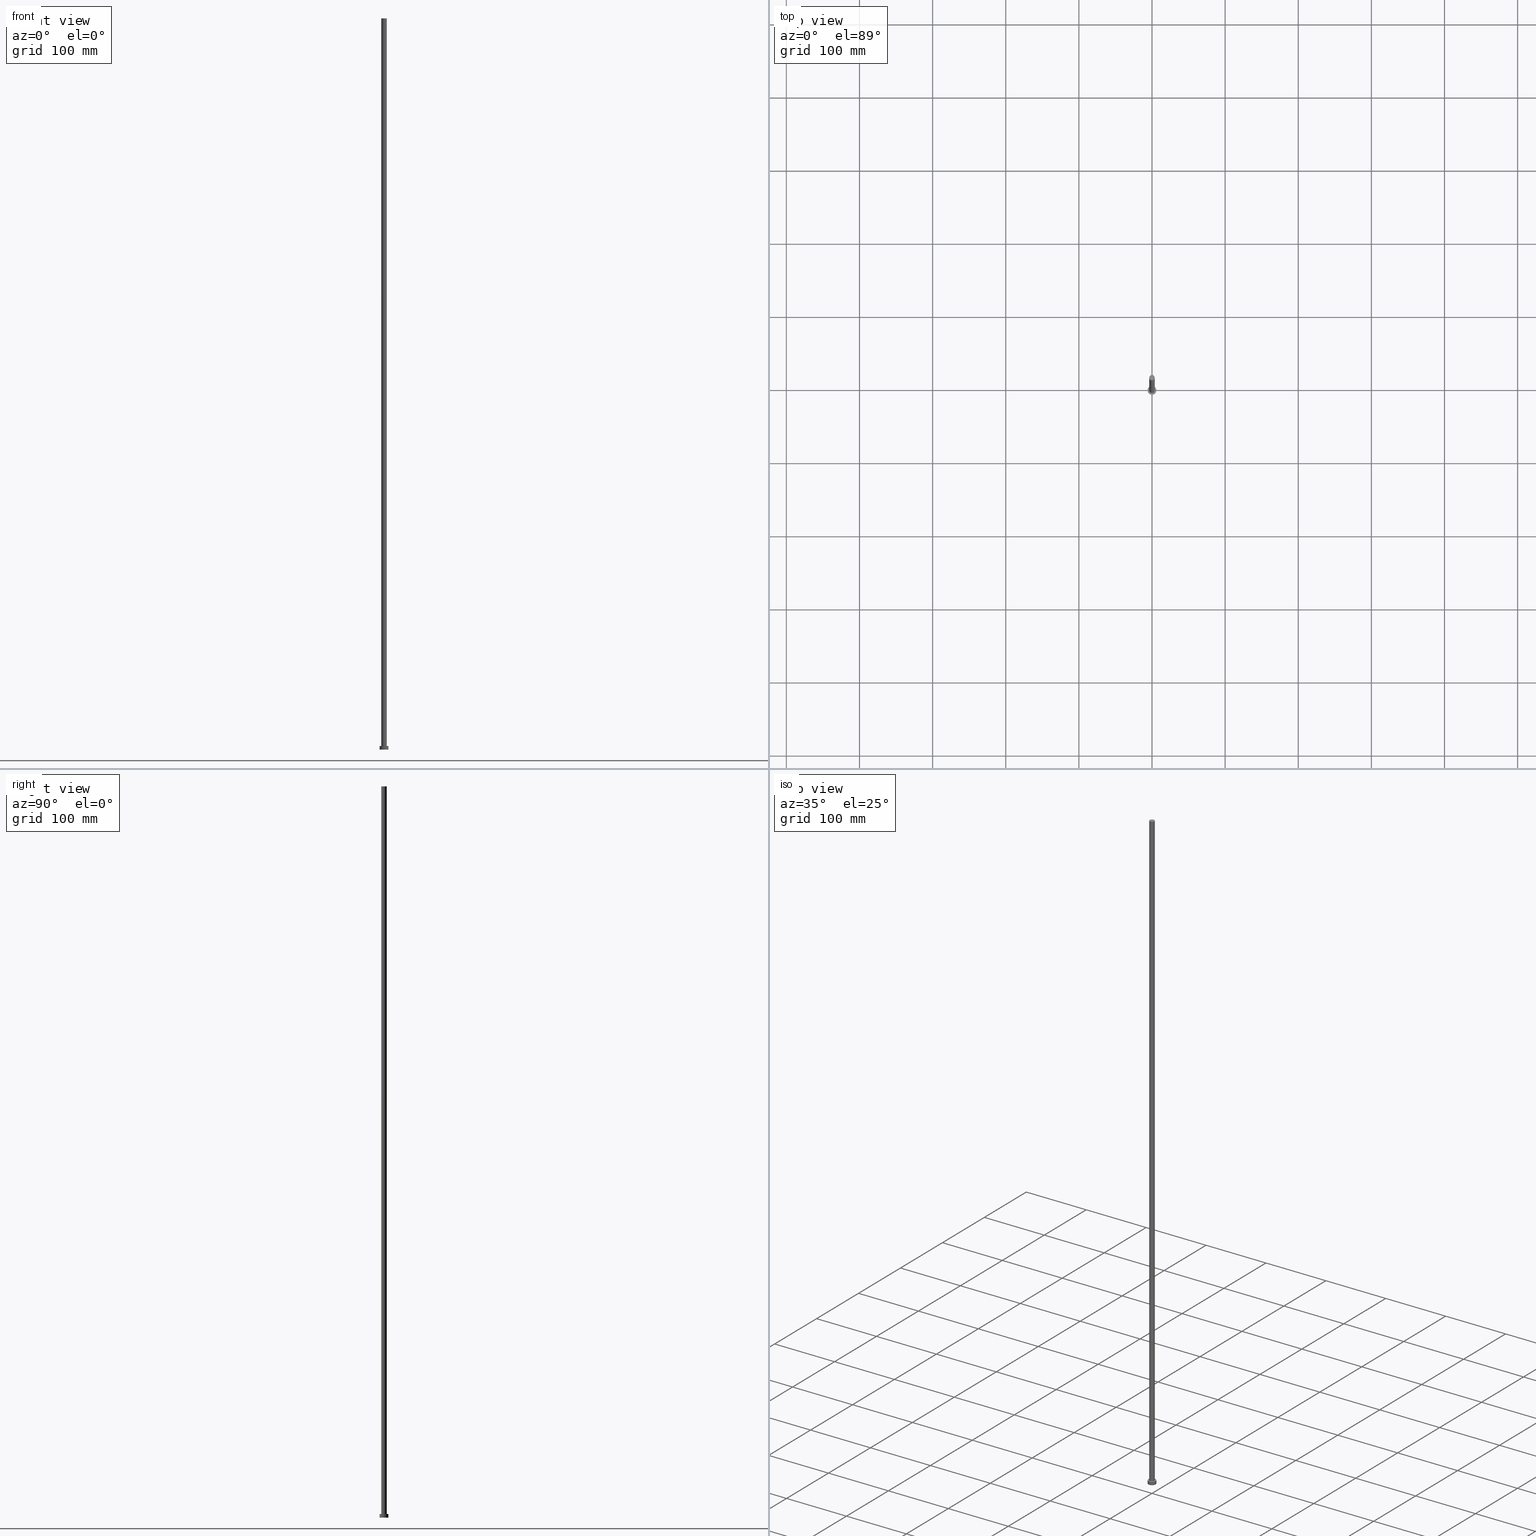
[diagram: canonical four-view strip — front | top / right | iso, engineering-drawing reading convention]
A machine part, canonical four-view strip (front | top / right | iso — engineering-drawing reading convention). The complete STEP part file that produces these views, byte-faithful:
ISO-10303-21;
HEADER;
FILE_DESCRIPTION (( 'STEP AP203' ),
    '1' );
FILE_NAME ('e66f.STEP',
    '2023-02-13T14:45:27',
    ( '' ),
    ( '' ),
    'SwSTEP 2.0',
    'SolidWorks 2019',
    '' );
FILE_SCHEMA (( 'CONFIG_CONTROL_DESIGN' ));
ENDSEC;

DATA;
#1 = COORDINATED_UNIVERSAL_TIME_OFFSET ( 1, 0, .AHEAD. ) ;
#2 = DIRECTION ( 'NONE',  ( 1.000000000000000000, 0.000000000000000000, 0.000000000000000000 ) ) ;
#3 = APPLICATION_CONTEXT ( 'configuration controlled 3d designs of mechanical parts and assemblies' ) ;
#4 = DATE_TIME_ROLE ( 'creation_date' ) ;
#5 = CC_DESIGN_PERSON_AND_ORGANIZATION_ASSIGNMENT ( #217, #76, ( #84 ) ) ;
#6 = CARTESIAN_POINT ( 'NONE',  ( 0.000000000000000000, 0.000000000000000000, 5.000000000000000000 ) ) ;
#7 = UNCERTAINTY_MEASURE_WITH_UNIT (LENGTH_MEASURE( 1.000000000000000082E-05 ), #219, 'distance_accuracy_value', 'NONE');
#8 = AXIS2_PLACEMENT_3D ( 'NONE', #247, #18, #154 ) ;
#9 = EDGE_CURVE ( 'NONE', #88, #133, #183, .T. ) ;
#10 = ADVANCED_BREP_SHAPE_REPRESENTATION ( 'e66f', ( #128, #90 ), #184 ) ;
#11 = FACE_BOUND ( 'NONE', #153, .T. ) ;
#12 = VECTOR ( 'NONE', #29, 1000.000000000000000 ) ;
#13 = EDGE_LOOP ( 'NONE', ( #17, #155 ) ) ;
#14 = VERTEX_POINT ( 'NONE', #181 ) ;
#15 = DESIGN_CONTEXT ( 'detailed design', #3, 'design' ) ;
#16 = EDGE_LOOP ( 'NONE', ( #57, #170, #182, #67 ) ) ;
#17 = ORIENTED_EDGE ( 'NONE', *, *, #99, .T. ) ;
#18 = DIRECTION ( 'NONE',  ( 0.000000000000000000, 0.000000000000000000, 1.000000000000000000 ) ) ;
#19 = VECTOR ( 'NONE', #22, 1000.000000000000000 ) ;
#20 = VERTEX_POINT ( 'NONE', #246 ) ;
#21 = EDGE_CURVE ( 'NONE', #20, #211, #63, .T. ) ;
#22 = DIRECTION ( 'NONE',  ( -0.000000000000000000, -0.000000000000000000, -1.000000000000000000 ) ) ;
#23 = AXIS2_PLACEMENT_3D ( 'NONE', #227, #55, #85 ) ;
#24 = APPROVAL_ROLE ( '' ) ;
#25 = COORDINATED_UNIVERSAL_TIME_OFFSET ( 1, 0, .AHEAD. ) ;
#26 = APPROVAL_STATUS ( 'not_yet_approved' ) ;
#27 = APPLICATION_PROTOCOL_DEFINITION ( 'international standard', 'config_control_design', 1994, #241 ) ;
#28 = ADVANCED_FACE ( 'NONE', ( #172 ), #185, .T. ) ;
#29 = DIRECTION ( 'NONE',  ( -0.000000000000000000, -0.000000000000000000, -1.000000000000000000 ) ) ;
#30 = CYLINDRICAL_SURFACE ( 'NONE', #251, 6.000000000000000888 ) ;
#31 = EDGE_CURVE ( 'NONE', #14, #161, #81, .T. ) ;
#32 = DIRECTION ( 'NONE',  ( 0.000000000000000000, 0.000000000000000000, 1.000000000000000000 ) ) ;
#33 = ORGANIZATION ( 'NEUR�EN�', 'NEUR�EN�', '' ) ;
#34 = CARTESIAN_POINT ( 'NONE',  ( 0.000000000000000000, 0.000000000000000000, 0.000000000000000000 ) ) ;
#35 = PERSON_AND_ORGANIZATION ( #41, #33 ) ;
#36 = AXIS2_PLACEMENT_3D ( 'NONE', #159, #105, #66 ) ;
#37 = ADVANCED_FACE ( 'NONE', ( #11, #243 ), #83, .T. ) ;
#38 = AXIS2_PLACEMENT_3D ( 'NONE', #100, #64, #158 ) ;
#39 = DIRECTION ( 'NONE',  ( 0.000000000000000000, 0.000000000000000000, 1.000000000000000000 ) ) ;
#40 = ORIENTED_EDGE ( 'NONE', *, *, #214, .T. ) ;
#41 = PERSON ( 'NEUR�EN�', 'NEUR�EN�', 'NEUR�EN�', ('NEUR�EN�'), ('NEUR�EN�'), ('NEUR�EN�') ) ;
#42 = AXIS2_PLACEMENT_3D ( 'NONE', #208, #39, #160 ) ;
#43 = EDGE_CURVE ( 'NONE', #211, #20, #102, .T. ) ;
#44 = PERSON_AND_ORGANIZATION_ROLE ( 'classification_officer' ) ;
#45 = CIRCLE ( 'NONE', #103, 3.750000000000000000 ) ;
#46 = CARTESIAN_POINT ( 'NONE',  ( 0.000000000000000000, 0.000000000000000000, 1000.000000000000000 ) ) ;
#47 = PERSON_AND_ORGANIZATION ( #41, #33 ) ;
#48 = LINE ( 'NONE', #96, #12 ) ;
#49 = PERSON_AND_ORGANIZATION ( #41, #33 ) ;
#50 = CARTESIAN_POINT ( 'NONE',  ( -6.000000000000000888, 0.000000000000000000, 5.000000000000000000 ) ) ;
#51 = CARTESIAN_POINT ( 'NONE',  ( 3.750000000000000000, 4.592425496802572986E-16, 1000.000000000000000 ) ) ;
#52 = DIRECTION ( 'NONE',  ( -0.000000000000000000, -0.000000000000000000, -1.000000000000000000 ) ) ;
#53 = LINE ( 'NONE', #50, #132 ) ;
#54 = EDGE_LOOP ( 'NONE', ( #65, #249, #134, #152 ) ) ;
#55 = DIRECTION ( 'NONE',  ( 0.000000000000000000, 0.000000000000000000, 1.000000000000000000 ) ) ;
#56 = LOCAL_TIME ( 15, 45, 27.00000000000000000, #112 ) ;
#57 = ORIENTED_EDGE ( 'NONE', *, *, #226, .F. ) ;
#58 = EDGE_LOOP ( 'NONE', ( #156, #89 ) ) ;
#59 = DIRECTION ( 'NONE',  ( 1.000000000000000000, 0.000000000000000000, 0.000000000000000000 ) ) ;
#60 = PRODUCT_DEFINITION ( 'NEZN�M�', '', #84, #15 ) ;
#61 = CARTESIAN_POINT ( 'NONE',  ( 0.000000000000000000, 0.000000000000000000, 1000.000000000000000 ) ) ;
#62 = ORIENTED_EDGE ( 'NONE', *, *, #87, .F. ) ;
#63 = CIRCLE ( 'NONE', #242, 3.750000000000000000 ) ;
#64 = DIRECTION ( 'NONE',  ( 0.000000000000000000, 0.000000000000000000, 1.000000000000000000 ) ) ;
#65 = ORIENTED_EDGE ( 'NONE', *, *, #9, .F. ) ;
#66 = DIRECTION ( 'NONE',  ( -1.000000000000000000, 0.000000000000000000, 0.000000000000000000 ) ) ;
#67 = ORIENTED_EDGE ( 'NONE', *, *, #31, .T. ) ;
#68 = CIRCLE ( 'NONE', #42, 6.000000000000000888 ) ;
#69 = FACE_OUTER_BOUND ( 'NONE', #54, .T. ) ;
#70 = AXIS2_PLACEMENT_3D ( 'NONE', #222, #32, #93 ) ;
#71 = APPROVAL_ROLE ( '' ) ;
#72 = SHAPE_DEFINITION_REPRESENTATION ( #130, #10 ) ;
#73 = CC_DESIGN_PERSON_AND_ORGANIZATION_ASSIGNMENT ( #49, #193, ( #60 ) ) ;
#74 = CLOSED_SHELL ( 'NONE', ( #106, #97, #233, #37, #231, #238, #28 ) ) ;
#75 = PERSON_AND_ORGANIZATION ( #41, #33 ) ;
#76 = PERSON_AND_ORGANIZATION_ROLE ( 'design_supplier' ) ;
#77 =( NAMED_UNIT ( * ) PLANE_ANGLE_UNIT ( ) SI_UNIT ( $, .RADIAN. ) );
#78 = DIRECTION ( 'NONE',  ( 0.000000000000000000, 0.000000000000000000, 1.000000000000000000 ) ) ;
#79 = CARTESIAN_POINT ( 'NONE',  ( 0.000000000000000000, 0.000000000000000000, 1000.000000000000000 ) ) ;
#80 = DIRECTION ( 'NONE',  ( -0.000000000000000000, -0.000000000000000000, -1.000000000000000000 ) ) ;
#81 = CIRCLE ( 'NONE', #23, 6.000000000000000888 ) ;
#82 = MECHANICAL_CONTEXT ( 'NONE', #241, 'mechanical' ) ;
#83 = PLANE ( 'NONE',  #192 ) ;
#84 = PRODUCT_DEFINITION_FORMATION_WITH_SPECIFIED_SOURCE ( 'LIBOVOLN�', '', #201, .NOT_KNOWN. ) ;
#85 = DIRECTION ( 'NONE',  ( 1.000000000000000000, 0.000000000000000000, 0.000000000000000000 ) ) ;
#86 = DIRECTION ( 'NONE',  ( 0.000000000000000000, 0.000000000000000000, 1.000000000000000000 ) ) ;
#87 = EDGE_CURVE ( 'NONE', #211, #163, #104, .T. ) ;
#88 = VERTEX_POINT ( 'NONE', #252 ) ;
#89 = ORIENTED_EDGE ( 'NONE', *, *, #21, .T. ) ;
#90 = AXIS2_PLACEMENT_3D ( 'NONE', #34, #86, #59 ) ;
#91 = DATE_AND_TIME ( #111, #244 ) ;
#92 = DATE_AND_TIME ( #125, #56 ) ;
#93 = DIRECTION ( 'NONE',  ( 1.000000000000000000, 0.000000000000000000, -0.000000000000000000 ) ) ;
#94 = COORDINATED_UNIVERSAL_TIME_OFFSET ( 1, 0, .AHEAD. ) ;
#95 = APPROVAL_PERSON_ORGANIZATION ( #75, #206, #215 ) ;
#96 = CARTESIAN_POINT ( 'NONE',  ( 6.000000000000000888, 7.347880794884120722E-16, 5.000000000000000000 ) ) ;
#97 = ADVANCED_FACE ( 'NONE', ( #69 ), #142, .T. ) ;
#98 = DIRECTION ( 'NONE',  ( 1.000000000000000000, 0.000000000000000000, 0.000000000000000000 ) ) ;
#99 = EDGE_CURVE ( 'NONE', #133, #88, #68, .T. ) ;
#100 = CARTESIAN_POINT ( 'NONE',  ( 0.000000000000000000, 0.000000000000000000, 5.000000000000000000 ) ) ;
#101 = AXIS2_PLACEMENT_3D ( 'NONE', #79, #52, #151 ) ;
#102 = CIRCLE ( 'NONE', #137, 3.750000000000000000 ) ;
#103 = AXIS2_PLACEMENT_3D ( 'NONE', #6, #78, #2 ) ;
#104 = LINE ( 'NONE', #194, #19 ) ;
#105 = DIRECTION ( 'NONE',  ( -0.000000000000000000, -0.000000000000000000, -1.000000000000000000 ) ) ;
#106 = ADVANCED_FACE ( 'NONE', ( #230 ), #140, .T. ) ;
#107 = APPROVAL_DATE_TIME ( #91, #206 ) ;
#108 = DIRECTION ( 'NONE',  ( -1.000000000000000000, 0.000000000000000000, 0.000000000000000000 ) ) ;
#109 = SECURITY_CLASSIFICATION ( '', '', #126 ) ;
#110 = DATE_AND_TIME ( #123, #220 ) ;
#111 = CALENDAR_DATE ( 2023, 13, 2 ) ;
#112 = COORDINATED_UNIVERSAL_TIME_OFFSET ( 1, 0, .AHEAD. ) ;
#113 = DIRECTION ( 'NONE',  ( -0.000000000000000000, -0.000000000000000000, -1.000000000000000000 ) ) ;
#114 = CC_DESIGN_PERSON_AND_ORGANIZATION_ASSIGNMENT ( #135, #118, ( #201 ) ) ;
#115 = EDGE_LOOP ( 'NONE', ( #171, #122 ) ) ;
#116 = CYLINDRICAL_SURFACE ( 'NONE', #101, 3.750000000000000000 ) ;
#117 = APPROVAL_PERSON_ORGANIZATION ( #35, #178, #71 ) ;
#118 = PERSON_AND_ORGANIZATION_ROLE ( 'design_owner' ) ;
#119 = ORIENTED_EDGE ( 'NONE', *, *, #187, .F. ) ;
#120 = CC_DESIGN_APPROVAL ( #206, ( #109 ) ) ;
#121 = ORIENTED_EDGE ( 'NONE', *, *, #157, .T. ) ;
#122 = ORIENTED_EDGE ( 'NONE', *, *, #167, .F. ) ;
#123 = CALENDAR_DATE ( 2023, 13, 2 ) ;
#124 = DIRECTION ( 'NONE',  ( 1.000000000000000000, 0.000000000000000000, 0.000000000000000000 ) ) ;
#125 = CALENDAR_DATE ( 2023, 13, 2 ) ;
#126 = SECURITY_CLASSIFICATION_LEVEL ( 'unclassified' ) ;
#127 = CC_DESIGN_SECURITY_CLASSIFICATION ( #109, ( #84 ) ) ;
#128 = MANIFOLD_SOLID_BREP ( 'P�idat vysunut�m3', #74 ) ;
#129 = DIRECTION ( 'NONE',  ( -0.000000000000000000, -0.000000000000000000, -1.000000000000000000 ) ) ;
#130 = PRODUCT_DEFINITION_SHAPE ( 'NONE', 'NONE',  #60 ) ;
#131 = APPROVAL ( #26, 'NEUR�EN�' ) ;
#132 = VECTOR ( 'NONE', #80, 1000.000000000000000 ) ;
#133 = VERTEX_POINT ( 'NONE', #199 ) ;
#134 = ORIENTED_EDGE ( 'NONE', *, *, #167, .T. ) ;
#135 = PERSON_AND_ORGANIZATION ( #41, #33 ) ;
#136 = EDGE_LOOP ( 'NONE', ( #223, #121, #186, #62 ) ) ;
#137 = AXIS2_PLACEMENT_3D ( 'NONE', #46, #190, #124 ) ;
#138 = PRODUCT_RELATED_PRODUCT_CATEGORY ( 'detail', '', ( #201 ) ) ;
#139 = VERTEX_POINT ( 'NONE', #218 ) ;
#140 = CYLINDRICAL_SURFACE ( 'NONE', #254, 3.750000000000000000 ) ;
#141 = COORDINATED_UNIVERSAL_TIME_OFFSET ( 1, 0, .AHEAD. ) ;
#142 = CYLINDRICAL_SURFACE ( 'NONE', #36, 6.000000000000000888 ) ;
#143 = DIRECTION ( 'NONE',  ( 1.000000000000000000, 0.000000000000000000, -0.000000000000000000 ) ) ;
#144 = AXIS2_PLACEMENT_3D ( 'NONE', #216, #148, #98 ) ;
#145 = APPROVAL_STATUS ( 'not_yet_approved' ) ;
#146 = CARTESIAN_POINT ( 'NONE',  ( -3.750000000000000000, 0.000000000000000000, 1000.000000000000000 ) ) ;
#147 = DATE_AND_TIME ( #209, #165 ) ;
#148 = DIRECTION ( 'NONE',  ( 0.000000000000000000, 0.000000000000000000, 1.000000000000000000 ) ) ;
#149 = CIRCLE ( 'NONE', #250, 6.000000000000000888 ) ;
#150 = PLANE ( 'NONE',  #70 ) ;
#151 = DIRECTION ( 'NONE',  ( -1.000000000000000000, 0.000000000000000000, 0.000000000000000000 ) ) ;
#152 = ORIENTED_EDGE ( 'NONE', *, *, #253, .F. ) ;
#153 = EDGE_LOOP ( 'NONE', ( #188, #119 ) ) ;
#154 = DIRECTION ( 'NONE',  ( 1.000000000000000000, 0.000000000000000000, -0.000000000000000000 ) ) ;
#155 = ORIENTED_EDGE ( 'NONE', *, *, #9, .T. ) ;
#156 = ORIENTED_EDGE ( 'NONE', *, *, #43, .T. ) ;
#157 = EDGE_CURVE ( 'NONE', #20, #139, #237, .T. ) ;
#158 = DIRECTION ( 'NONE',  ( 1.000000000000000000, 0.000000000000000000, 0.000000000000000000 ) ) ;
#159 = CARTESIAN_POINT ( 'NONE',  ( 0.000000000000000000, 0.000000000000000000, 5.000000000000000000 ) ) ;
#160 = DIRECTION ( 'NONE',  ( 1.000000000000000000, 0.000000000000000000, 0.000000000000000000 ) ) ;
#161 = VERTEX_POINT ( 'NONE', #177 ) ;
#162 = CARTESIAN_POINT ( 'NONE',  ( 0.000000000000000000, 0.000000000000000000, 5.000000000000000000 ) ) ;
#163 = VERTEX_POINT ( 'NONE', #221 ) ;
#164 = PERSON_AND_ORGANIZATION ( #41, #33 ) ;
#165 = LOCAL_TIME ( 15, 45, 27.00000000000000000, #141 ) ;
#166 = CALENDAR_DATE ( 2023, 13, 2 ) ;
#167 = EDGE_CURVE ( 'NONE', #161, #14, #149, .T. ) ;
#168 = DIRECTION ( 'NONE',  ( 0.000000000000000000, 0.000000000000000000, 1.000000000000000000 ) ) ;
#169 = FACE_OUTER_BOUND ( 'NONE', #16, .T. ) ;
#170 = ORIENTED_EDGE ( 'NONE', *, *, #99, .F. ) ;
#171 = ORIENTED_EDGE ( 'NONE', *, *, #31, .F. ) ;
#172 = FACE_OUTER_BOUND ( 'NONE', #58, .T. ) ;
#173 = ORIENTED_EDGE ( 'NONE', *, *, #43, .F. ) ;
#174 = APPROVAL_DATE_TIME ( #147, #178 ) ;
#175 = FACE_OUTER_BOUND ( 'NONE', #245, .T. ) ;
#176 = CIRCLE ( 'NONE', #144, 3.750000000000000000 ) ;
#177 = CARTESIAN_POINT ( 'NONE',  ( 6.000000000000000888, 7.347880794884120722E-16, 0.000000000000000000 ) ) ;
#178 = APPROVAL ( #229, 'NEUR�EN�' ) ;
#179 = DIRECTION ( 'NONE',  ( -1.000000000000000000, 0.000000000000000000, 0.000000000000000000 ) ) ;
#180 = CC_DESIGN_APPROVAL ( #178, ( #60 ) ) ;
#181 = CARTESIAN_POINT ( 'NONE',  ( -6.000000000000000888, 0.000000000000000000, 0.000000000000000000 ) ) ;
#182 = ORIENTED_EDGE ( 'NONE', *, *, #253, .T. ) ;
#183 = CIRCLE ( 'NONE', #38, 6.000000000000000888 ) ;
#184 =( GEOMETRIC_REPRESENTATION_CONTEXT ( 3 ) GLOBAL_UNCERTAINTY_ASSIGNED_CONTEXT ( ( #7 ) ) GLOBAL_UNIT_ASSIGNED_CONTEXT ( ( #219, #77, #196 ) ) REPRESENTATION_CONTEXT ( 'NONE', 'WORKASPACE' ) );
#185 = PLANE ( 'NONE',  #8 ) ;
#186 = ORIENTED_EDGE ( 'NONE', *, *, #187, .T. ) ;
#187 = EDGE_CURVE ( 'NONE', #139, #163, #45, .T. ) ;
#188 = ORIENTED_EDGE ( 'NONE', *, *, #214, .F. ) ;
#189 = APPROVAL_PERSON_ORGANIZATION ( #164, #131, #24 ) ;
#190 = DIRECTION ( 'NONE',  ( 0.000000000000000000, 0.000000000000000000, 1.000000000000000000 ) ) ;
#191 = DIRECTION ( 'NONE',  ( -0.000000000000000000, -0.000000000000000000, -1.000000000000000000 ) ) ;
#192 = AXIS2_PLACEMENT_3D ( 'NONE', #162, #232, #143 ) ;
#193 = PERSON_AND_ORGANIZATION_ROLE ( 'creator' ) ;
#194 = CARTESIAN_POINT ( 'NONE',  ( -3.750000000000000000, 0.000000000000000000, 1000.000000000000000 ) ) ;
#195 = PERSON_AND_ORGANIZATION_ROLE ( 'creator' ) ;
#196 =( NAMED_UNIT ( * ) SI_UNIT ( $, .STERADIAN. ) SOLID_ANGLE_UNIT ( ) );
#197 = APPROVAL_DATE_TIME ( #235, #131 ) ;
#198 = VECTOR ( 'NONE', #113, 1000.000000000000000 ) ;
#199 = CARTESIAN_POINT ( 'NONE',  ( -6.000000000000000888, 0.000000000000000000, 5.000000000000000000 ) ) ;
#200 = DIRECTION ( 'NONE',  ( 1.000000000000000000, 0.000000000000000000, 0.000000000000000000 ) ) ;
#201 = PRODUCT ( 'e66f', 'e66f', '', ( #82 ) ) ;
#202 = CC_DESIGN_PERSON_AND_ORGANIZATION_ASSIGNMENT ( #47, #195, ( #84 ) ) ;
#203 = CC_DESIGN_DATE_AND_TIME_ASSIGNMENT ( #110, #234, ( #109 ) ) ;
#204 = APPLICATION_PROTOCOL_DEFINITION ( 'international standard', 'config_control_design', 1994, #3 ) ;
#205 = DIRECTION ( 'NONE',  ( 1.000000000000000000, 0.000000000000000000, 0.000000000000000000 ) ) ;
#206 = APPROVAL ( #145, 'NEUR�EN�' ) ;
#207 = DIRECTION ( 'NONE',  ( 0.000000000000000000, 0.000000000000000000, 1.000000000000000000 ) ) ;
#208 = CARTESIAN_POINT ( 'NONE',  ( 0.000000000000000000, 0.000000000000000000, 5.000000000000000000 ) ) ;
#209 = CALENDAR_DATE ( 2023, 13, 2 ) ;
#210 = CARTESIAN_POINT ( 'NONE',  ( 0.000000000000000000, 0.000000000000000000, 1000.000000000000000 ) ) ;
#211 = VERTEX_POINT ( 'NONE', #146 ) ;
#212 = PERSON_AND_ORGANIZATION ( #41, #33 ) ;
#213 = LOCAL_TIME ( 15, 45, 27.00000000000000000, #94 ) ;
#214 = EDGE_CURVE ( 'NONE', #163, #139, #176, .T. ) ;
#215 = APPROVAL_ROLE ( '' ) ;
#216 = CARTESIAN_POINT ( 'NONE',  ( 0.000000000000000000, 0.000000000000000000, 5.000000000000000000 ) ) ;
#217 = PERSON_AND_ORGANIZATION ( #41, #33 ) ;
#218 = CARTESIAN_POINT ( 'NONE',  ( 3.750000000000000000, 4.592425496802572986E-16, 5.000000000000000000 ) ) ;
#219 =( LENGTH_UNIT ( ) NAMED_UNIT ( * ) SI_UNIT ( .MILLI., .METRE. ) );
#220 = LOCAL_TIME ( 15, 45, 27.00000000000000000, #1 ) ;
#221 = CARTESIAN_POINT ( 'NONE',  ( -3.750000000000000000, 0.000000000000000000, 5.000000000000000000 ) ) ;
#222 = CARTESIAN_POINT ( 'NONE',  ( 0.000000000000000000, 0.000000000000000000, 0.000000000000000000 ) ) ;
#223 = ORIENTED_EDGE ( 'NONE', *, *, #21, .F. ) ;
#224 = CC_DESIGN_DATE_AND_TIME_ASSIGNMENT ( #92, #4, ( #60 ) ) ;
#225 = ORIENTED_EDGE ( 'NONE', *, *, #87, .T. ) ;
#226 = EDGE_CURVE ( 'NONE', #88, #161, #48, .T. ) ;
#227 = CARTESIAN_POINT ( 'NONE',  ( 0.000000000000000000, 0.000000000000000000, 0.000000000000000000 ) ) ;
#228 = CC_DESIGN_APPROVAL ( #131, ( #84 ) ) ;
#229 = APPROVAL_STATUS ( 'not_yet_approved' ) ;
#230 = FACE_OUTER_BOUND ( 'NONE', #136, .T. ) ;
#231 = ADVANCED_FACE ( 'NONE', ( #239 ), #150, .F. ) ;
#232 = DIRECTION ( 'NONE',  ( 0.000000000000000000, 0.000000000000000000, 1.000000000000000000 ) ) ;
#233 = ADVANCED_FACE ( 'NONE', ( #169 ), #30, .T. ) ;
#234 = DATE_TIME_ROLE ( 'classification_date' ) ;
#235 = DATE_AND_TIME ( #166, #213 ) ;
#236 = CARTESIAN_POINT ( 'NONE',  ( 0.000000000000000000, 0.000000000000000000, 0.000000000000000000 ) ) ;
#237 = LINE ( 'NONE', #51, #198 ) ;
#238 = ADVANCED_FACE ( 'NONE', ( #175 ), #116, .T. ) ;
#239 = FACE_OUTER_BOUND ( 'NONE', #115, .T. ) ;
#240 = CARTESIAN_POINT ( 'NONE',  ( 0.000000000000000000, 0.000000000000000000, 5.000000000000000000 ) ) ;
#241 = APPLICATION_CONTEXT ( 'configuration controlled 3d designs of mechanical parts and assemblies' ) ;
#242 = AXIS2_PLACEMENT_3D ( 'NONE', #61, #207, #205 ) ;
#243 = FACE_OUTER_BOUND ( 'NONE', #13, .T. ) ;
#244 = LOCAL_TIME ( 15, 45, 27.00000000000000000, #25 ) ;
#245 = EDGE_LOOP ( 'NONE', ( #248, #173, #225, #40 ) ) ;
#246 = CARTESIAN_POINT ( 'NONE',  ( 3.750000000000000000, 4.592425496802572986E-16, 1000.000000000000000 ) ) ;
#247 = CARTESIAN_POINT ( 'NONE',  ( 0.000000000000000000, 0.000000000000000000, 1000.000000000000000 ) ) ;
#248 = ORIENTED_EDGE ( 'NONE', *, *, #157, .F. ) ;
#249 = ORIENTED_EDGE ( 'NONE', *, *, #226, .T. ) ;
#250 = AXIS2_PLACEMENT_3D ( 'NONE', #236, #168, #200 ) ;
#251 = AXIS2_PLACEMENT_3D ( 'NONE', #240, #129, #179 ) ;
#252 = CARTESIAN_POINT ( 'NONE',  ( 6.000000000000000888, 7.347880794884120722E-16, 5.000000000000000000 ) ) ;
#253 = EDGE_CURVE ( 'NONE', #133, #14, #53, .T. ) ;
#254 = AXIS2_PLACEMENT_3D ( 'NONE', #210, #191, #108 ) ;
#255 = CC_DESIGN_PERSON_AND_ORGANIZATION_ASSIGNMENT ( #212, #44, ( #109 ) ) ;
ENDSEC;
END-ISO-10303-21;
